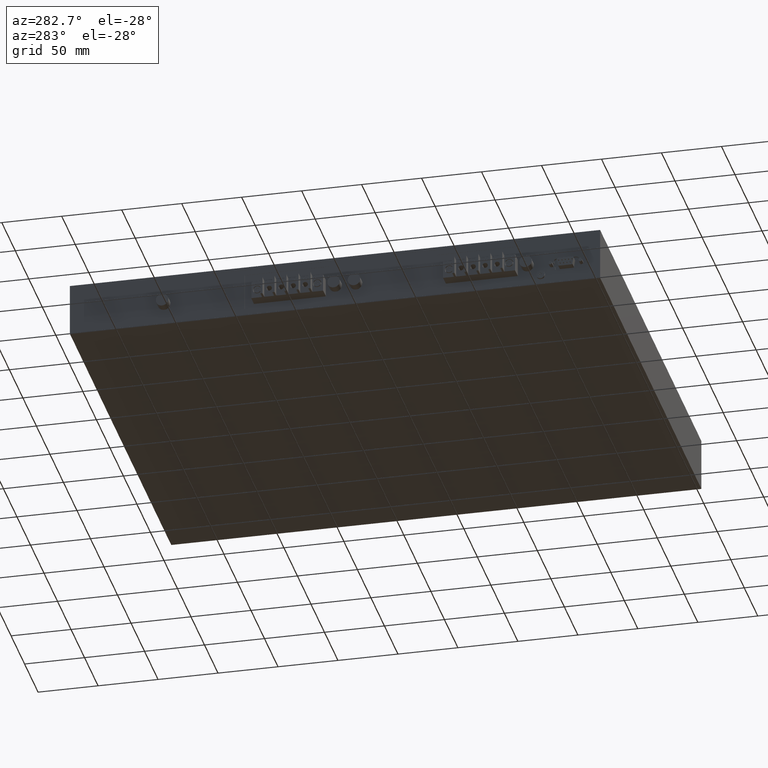
[diagram: clean part render]
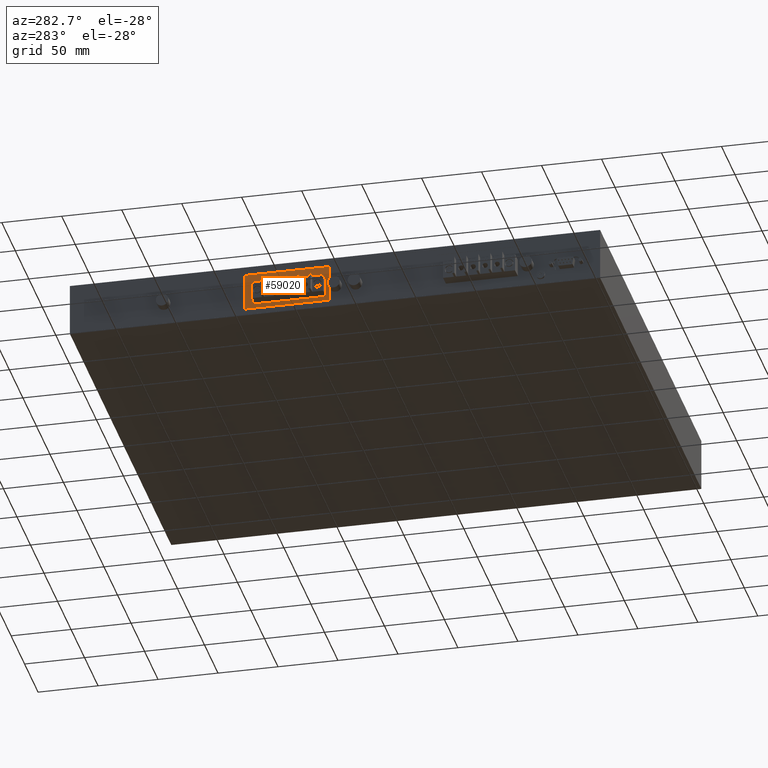
[diagram: same view with one face highlighted and labeled with its STEP entity id]
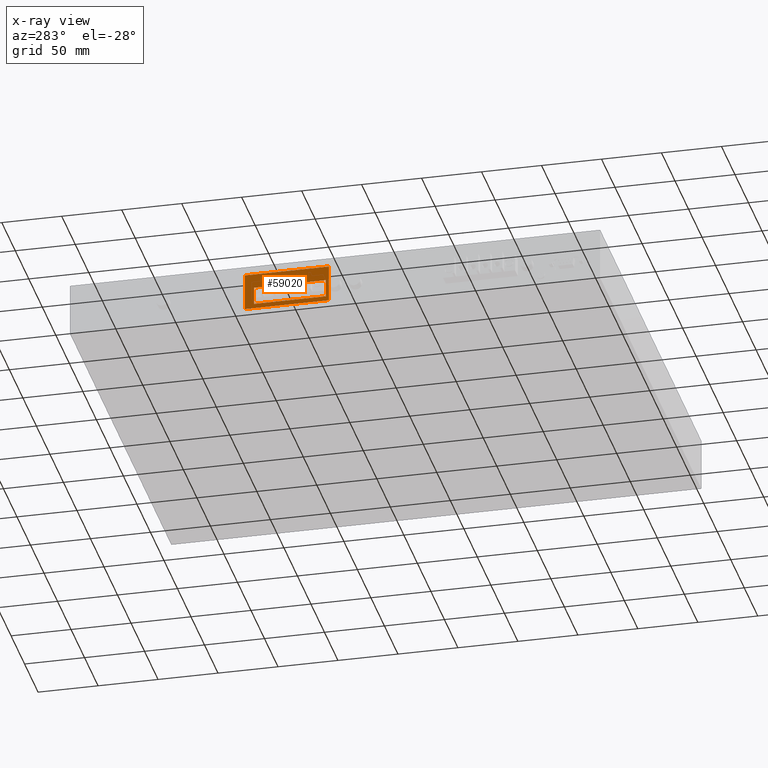
[diagram: x-ray of the same camera — body ghosted, the highlighted face saturated]
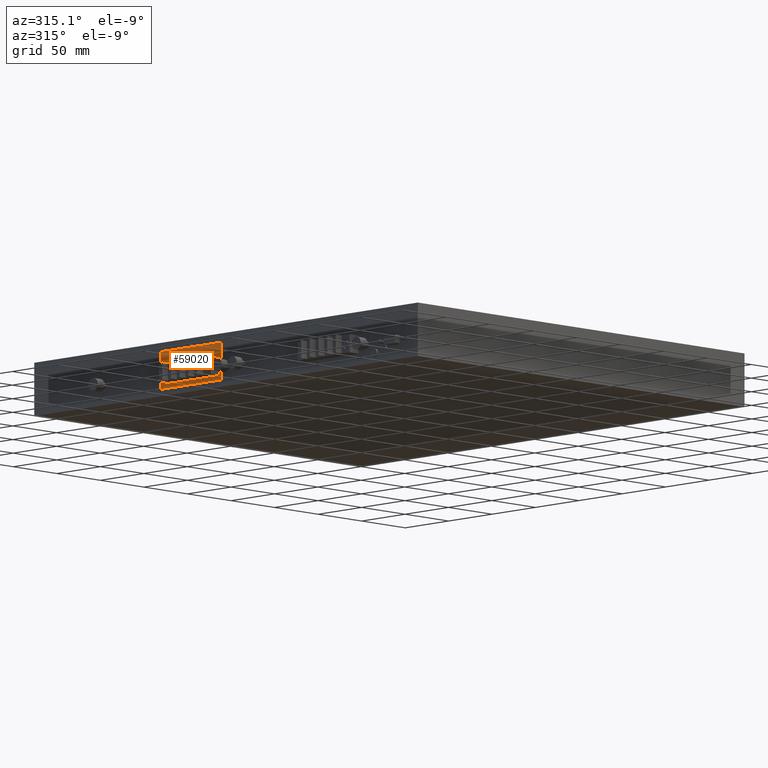
[diagram: same view with one face highlighted and labeled with its STEP entity id]
A machine part, auxiliary view. The second image highlights one B-rep face of the part: STEP entity #59020.
The next image is the same camera in x-ray: the body ghosted, the highlighted face saturated — about 0% of this face is hidden behind the body in this view.
A second angle (auxiliary view) of the same face is appended — the face is thin or edge-on in the first view.
In plain terms, the highlighted planar face has unit normal (-1, 0, 0).
Its self-contained STEP definition (entity closure, byte-faithful):
#21940=CARTESIAN_POINT('',(67.9060130425648,-15.0963677763395,
0.199999999980264));
#21950=VERTEX_POINT('',#21940);
#22000=CARTESIAN_POINT('',(160.,-15.0963677763395,0.199999999980264));
#22010=DIRECTION('',(-1.,-1.38777878078145E-16,0.));
#22020=VECTOR('',#22010,1.);
#22030=LINE('',#22000,#22020);
#22040=CARTESIAN_POINT('',(7.90601304256481,-15.0963677763395,
0.199999999980264));
#22050=VERTEX_POINT('',#22040);
#22060=EDGE_CURVE('',#21950,#22050,#22030,.T.);
#33000=CARTESIAN_POINT('',(5.40601304256532,0.,0.199999999980264));
#33010=DIRECTION('',(0.,1.,0.));
#33020=VECTOR('',#33010,1.);
#33030=LINE('',#33000,#33020);
#33040=CARTESIAN_POINT('',(5.40601304256532,-33.7963677763396,
0.199999999980264));
#33050=VERTEX_POINT('',#33040);
#33060=CARTESIAN_POINT('',(5.40601304256532,-2.79636777633966,
0.199999999980264));
#33070=VERTEX_POINT('',#33060);
#33080=EDGE_CURVE('',#33050,#33070,#33030,.T.);
#58470=CARTESIAN_POINT('',(77.156079192565,-34.5714339263396,
0.199999999980264));
#58480=DIRECTION('',(0.,0.,-1.));
#58490=DIRECTION('',(-1.,0.,0.));
#58500=AXIS2_PLACEMENT_3D('',#58470,#58480,#58490);
#58510=PLANE('',#58500);
#58520=CARTESIAN_POINT('',(75.406013042565,0.,0.199999999980264));
#58530=DIRECTION('',(0.,-1.,0.));
#58540=VECTOR('',#58530,1.);
#58550=LINE('',#58520,#58540);
#58560=CARTESIAN_POINT('',(75.406013042565,-2.79636777633966,
0.199999999980264));
#58570=VERTEX_POINT('',#58560);
#58580=CARTESIAN_POINT('',(75.406013042565,-33.7963677763396,
0.199999999980264));
#58590=VERTEX_POINT('',#58580);
#58600=EDGE_CURVE('',#58570,#58590,#58550,.T.);
#58610=ORIENTED_EDGE('',*,*,#58600,.T.);
#58620=CARTESIAN_POINT('',(0.,-2.79636777633966,0.199999999980264));
#58630=DIRECTION('',(1.,0.,0.));
#58640=VECTOR('',#58630,1.);
#58650=LINE('',#58620,#58640);
#58660=EDGE_CURVE('',#33070,#58570,#58650,.T.);
#58670=ORIENTED_EDGE('',*,*,#58660,.T.);
#58680=ORIENTED_EDGE('',*,*,#33080,.T.);
#58690=CARTESIAN_POINT('',(0.,-33.7963677763396,0.199999999980264));
#58700=DIRECTION('',(-1.,0.,0.));
#58710=VECTOR('',#58700,1.);
#58720=LINE('',#58690,#58710);
#58730=EDGE_CURVE('',#58590,#33050,#58720,.T.);
#58740=ORIENTED_EDGE('',*,*,#58730,.T.);
#58750=EDGE_LOOP('',(#58740,#58680,#58670,#58610));
#58760=FACE_OUTER_BOUND('',#58750,.T.);
#58770=CARTESIAN_POINT('',(67.9060130425648,1.4210854715202E-14,
0.199999999980264));
#58780=DIRECTION('',(-1.38777878078145E-16,1.,0.));
#58790=VECTOR('',#58780,1.);
#58800=LINE('',#58770,#58790);
#58810=CARTESIAN_POINT('',(67.9060130425648,-29.8963677763395,
0.199999999980264));
#58820=VERTEX_POINT('',#58810);
#58830=EDGE_CURVE('',#58820,#21950,#58800,.T.);
#58840=ORIENTED_EDGE('',*,*,#58830,.T.);
#58850=CARTESIAN_POINT('',(160.,-29.8963677763394,0.199999999980264));
#58860=DIRECTION('',(-1.,-1.38777878078145E-16,0.));
#58870=VECTOR('',#58860,1.);
#58880=LINE('',#58850,#58870);
#58890=CARTESIAN_POINT('',(7.90601304256481,-29.8963677763395,
0.199999999980264));
#58900=VERTEX_POINT('',#58890);
#58910=EDGE_CURVE('',#58820,#58900,#58880,.T.);
#58920=ORIENTED_EDGE('',*,*,#58910,.F.);
#58930=CARTESIAN_POINT('',(7.90601304256481,1.4210854715202E-14,
0.199999999980264));
#58940=DIRECTION('',(1.38777878078145E-16,-1.,0.));
#58950=VECTOR('',#58940,1.);
#58960=LINE('',#58930,#58950);
#58970=EDGE_CURVE('',#22050,#58900,#58960,.T.);
#58980=ORIENTED_EDGE('',*,*,#58970,.T.);
#58990=ORIENTED_EDGE('',*,*,#22060,.T.);
#59000=EDGE_LOOP('',(#58990,#58980,#58920,#58840));
#59010=FACE_BOUND('',#59000,.T.);
#59020=ADVANCED_FACE('',(#58760,#59010),#58510,.T.);